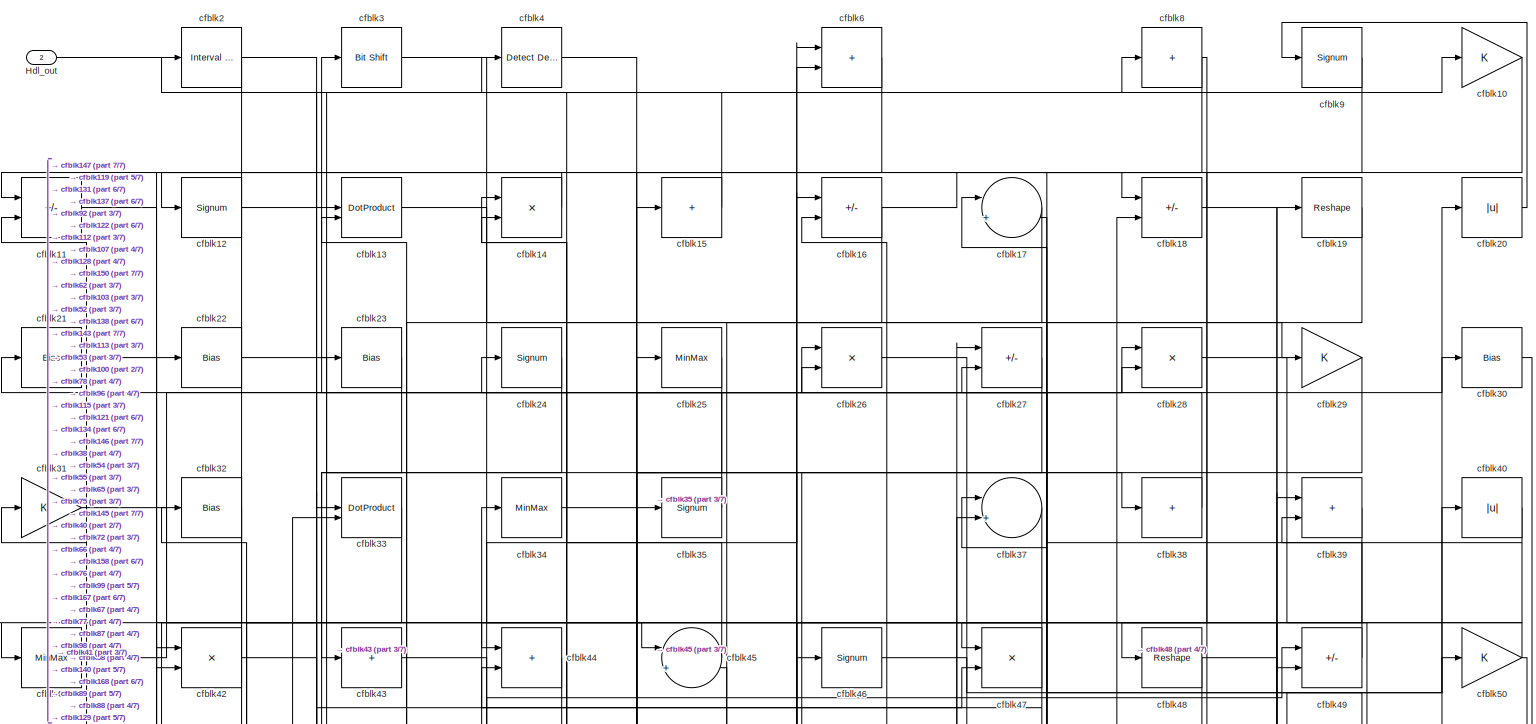
[diagram: root canvas - part 1/7, full width, top band]
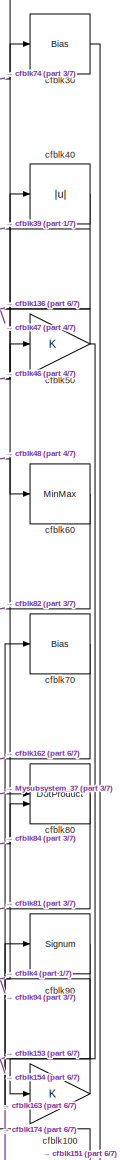
[diagram: root canvas - part 2/7, middle right region]
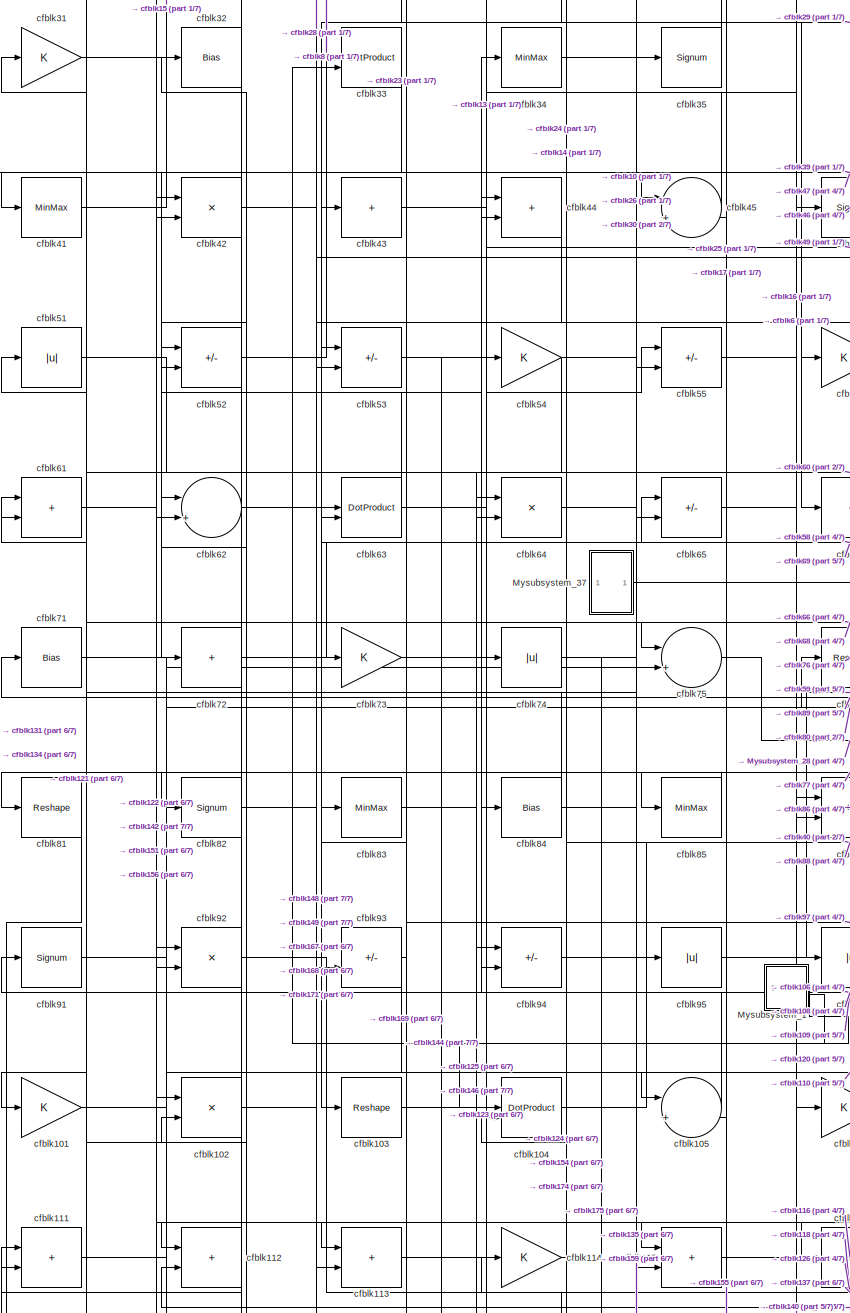
[diagram: root canvas - part 3/7, middle left region]
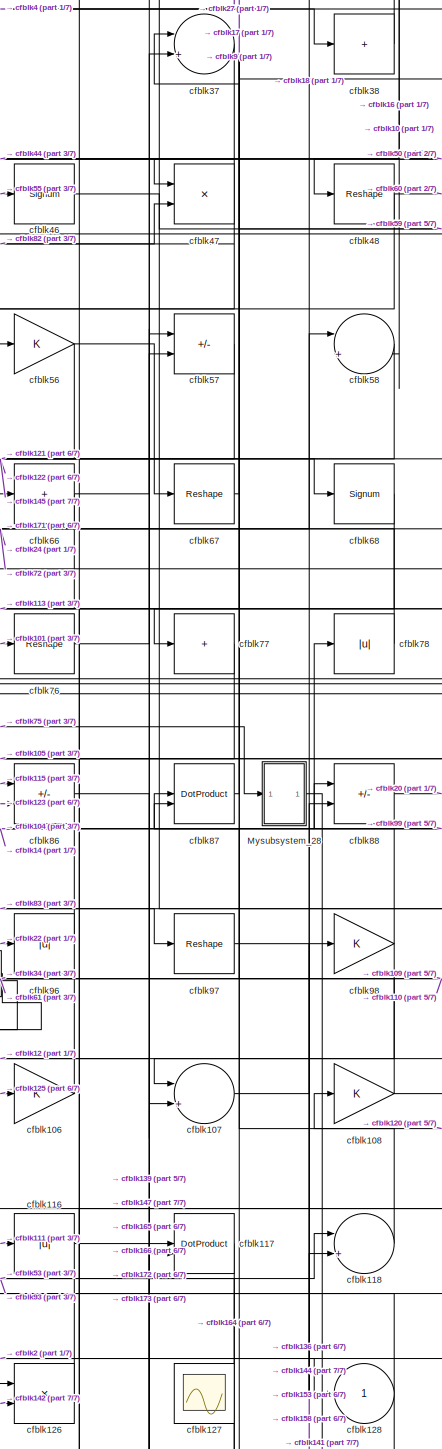
[diagram: root canvas - part 4/7, middle right region]
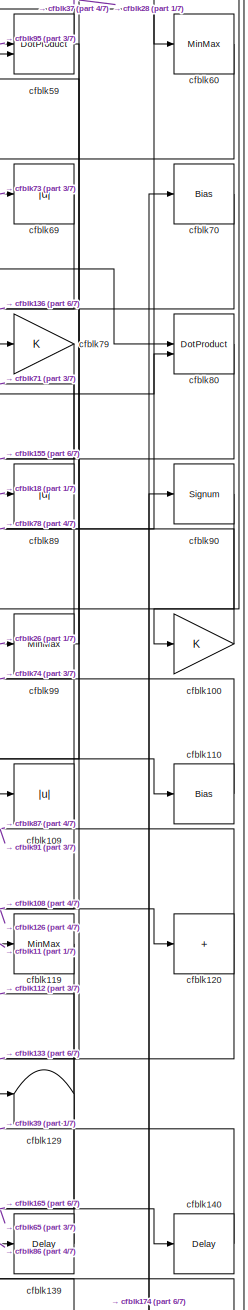
[diagram: root canvas - part 5/7, middle right region]
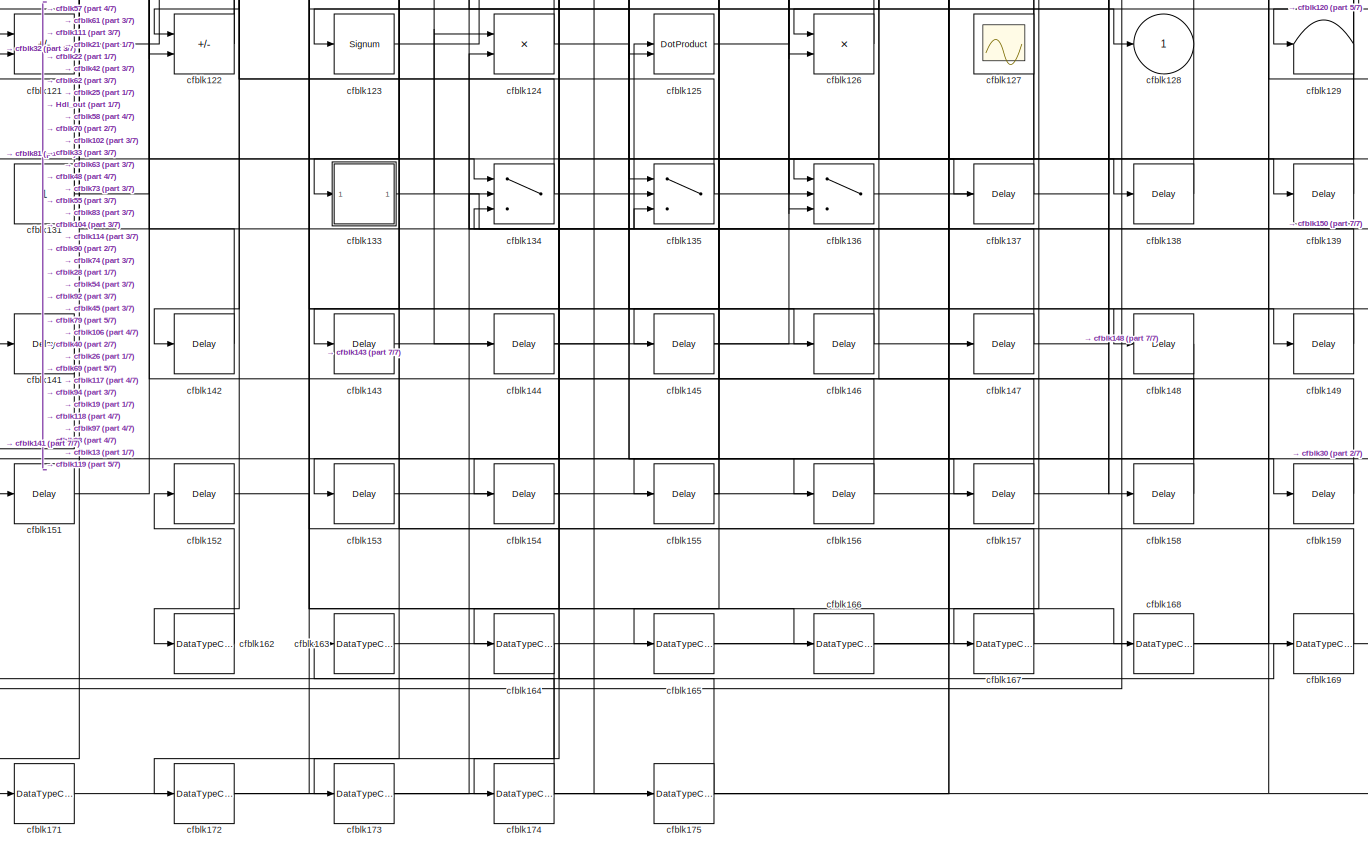
[diagram: root canvas - part 6/7, full width, bottom band]
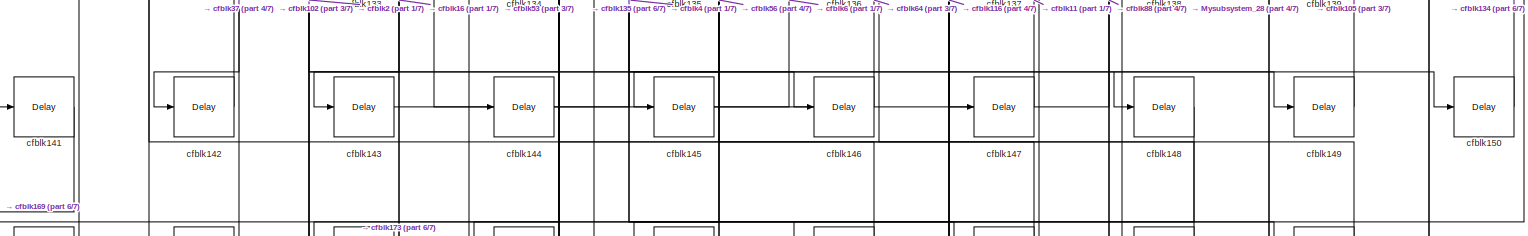
[diagram: root canvas - part 7/7, full width, bottom band]
MODEL slx_214a3b36d896
KIND model
CONFIG AbsTol = auto
CONFIG EnableMultiTasking = off
CONFIG FixedStep = auto
CONFIG MaxStep = auto
CONFIG MinStep = auto
CONFIG RelTol = 1e-3
CONFIG SampleTimeConstraint = Unconstrained
CONFIG SolverName = VariableStepAuto
CONFIG StartTime = 0.0
CONFIG StopTime = 10.0
BLOCK [Outport] Hdl_out
  OutDataTypeStr = uint8
  Port = 2
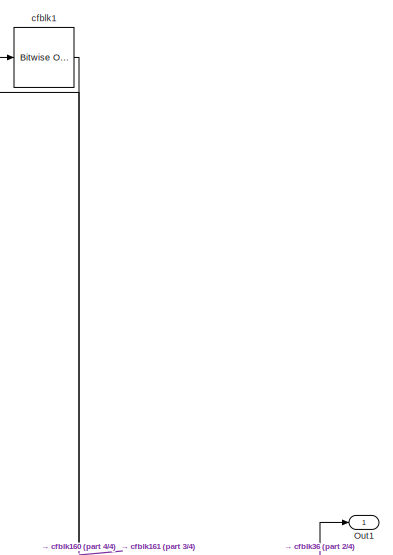
[diagram: Mysubsystem_1 - part 1/4, top left region]
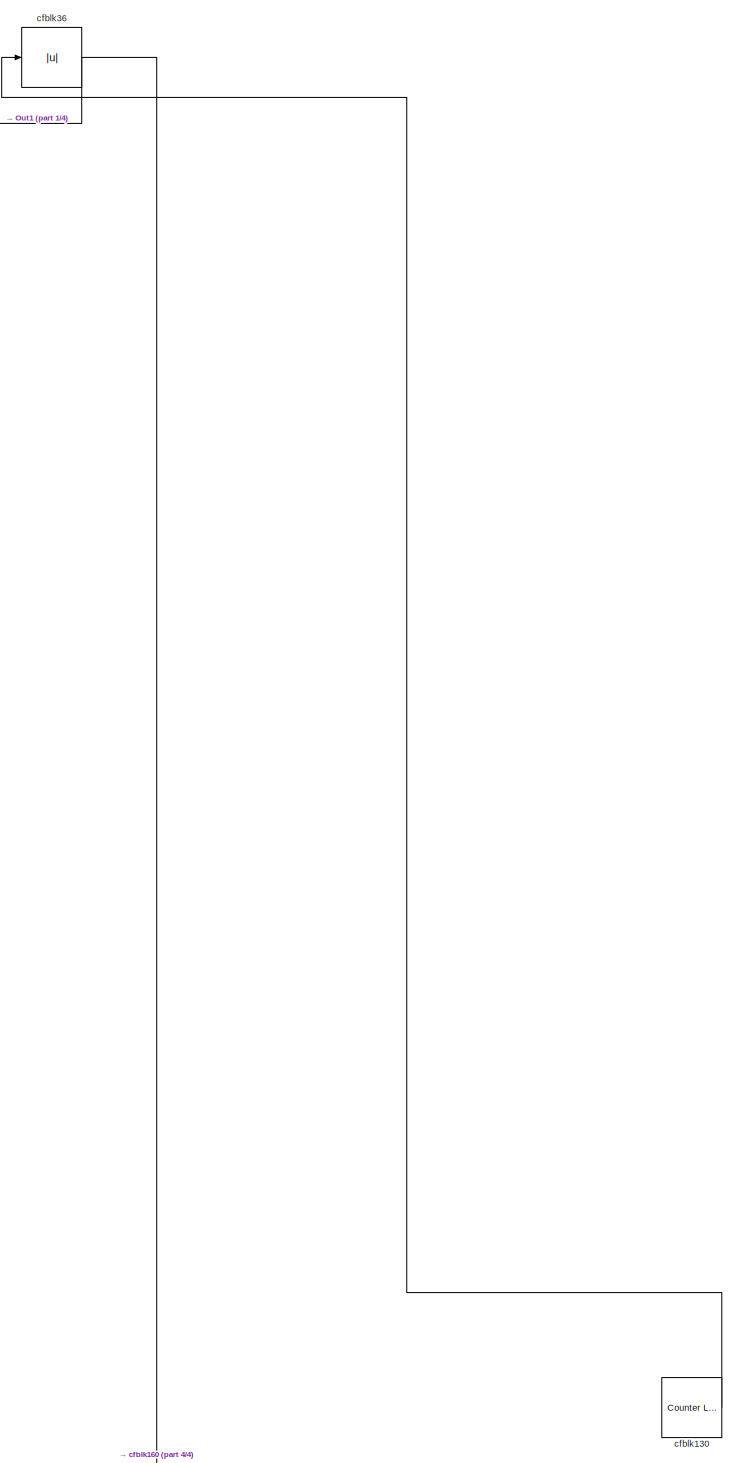
[diagram: Mysubsystem_1 - part 2/4, middle right region]
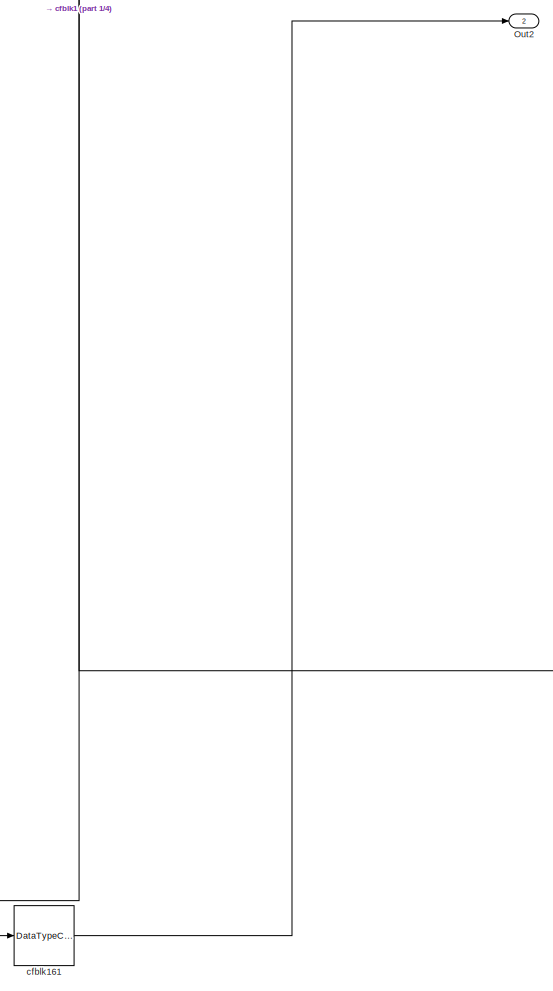
[diagram: Mysubsystem_1 - part 3/4, bottom left region]
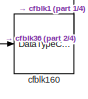
[diagram: Mysubsystem_1 - part 4/4, bottom right region]
BLOCK [SubSystem] Mysubsystem_1
  RTWFcnName = Mysubsystem_1
  RTWFcnNameOpts = User specified
  RTWFileNameOpts = Use function name
  RTWSystemCode = Reusable function
  TreatAsAtomicUnit = on
BLOCK [Outport] Mysubsystem_1/Out1
BLOCK [Outport] Mysubsystem_1/Out2
  Port = 2
BLOCK [Reference] Mysubsystem_1/cfblk1  REF=simulink/Logic and Bit
Operations/Bitwise
Operator
  LibrarySourceBlock = hdlsllib/Logic and Bit\nOperations/Bitwise\nOperator
  SourceBlock = simulink/Logic and Bit\nOperations/Bitwise\nOperator
  SourceType = Bitwise Operator
BLOCK [Reference] Mysubsystem_1/cfblk130  REF=hdlsllib/Sources/Counter
Limited
  SourceBlock = hdlsllib/Sources/Counter\nLimited
  SourceType = Counter Limited
BLOCK [DataTypeConversion] Mysubsystem_1/cfblk160
  OutDataTypeStr = boolean
  RndMeth = Floor
  SaturateOnIntegerOverflow = off
BLOCK [DataTypeConversion] Mysubsystem_1/cfblk161
  OutDataTypeStr = uint8
  RndMeth = Floor
  SaturateOnIntegerOverflow = off
BLOCK [Abs] Mysubsystem_1/cfblk36
  SaturateOnIntegerOverflow = off
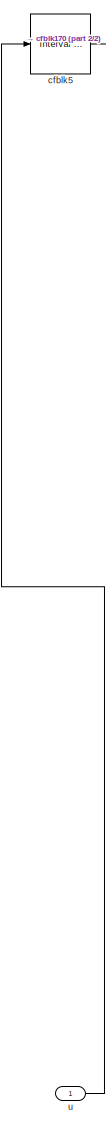
[diagram: Mysubsystem_28 - part 1/2, top center region]
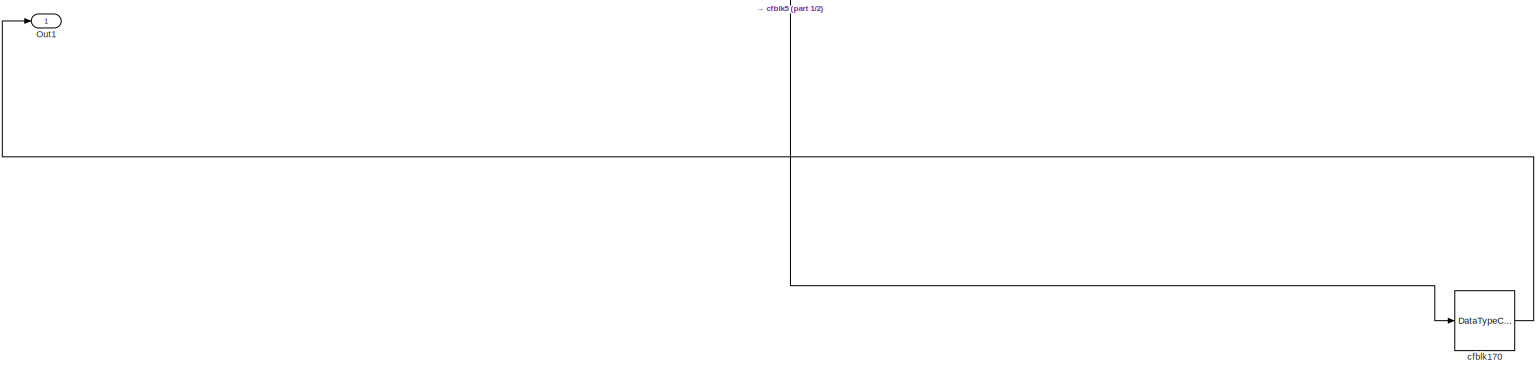
[diagram: Mysubsystem_28 - part 2/2, full width, bottom band]
BLOCK [SubSystem] Mysubsystem_28
  RTWFcnName = Mysubsystem_28
  RTWFcnNameOpts = User specified
  RTWFileNameOpts = Use function name
  RTWSystemCode = Reusable function
  TreatAsAtomicUnit = on
BLOCK [Outport] Mysubsystem_28/Out1
BLOCK [DataTypeConversion] Mysubsystem_28/cfblk170
  OutDataTypeStr = uint8
  RndMeth = Floor
  SaturateOnIntegerOverflow = off
BLOCK [Reference] Mysubsystem_28/cfblk5  REF=hdlsllib/Logic and Bit
Operations/Interval Test
  SourceBlock = hdlsllib/Logic and Bit\nOperations/Interval Test
  SourceType = Interval Test
BLOCK [Inport] Mysubsystem_28/u
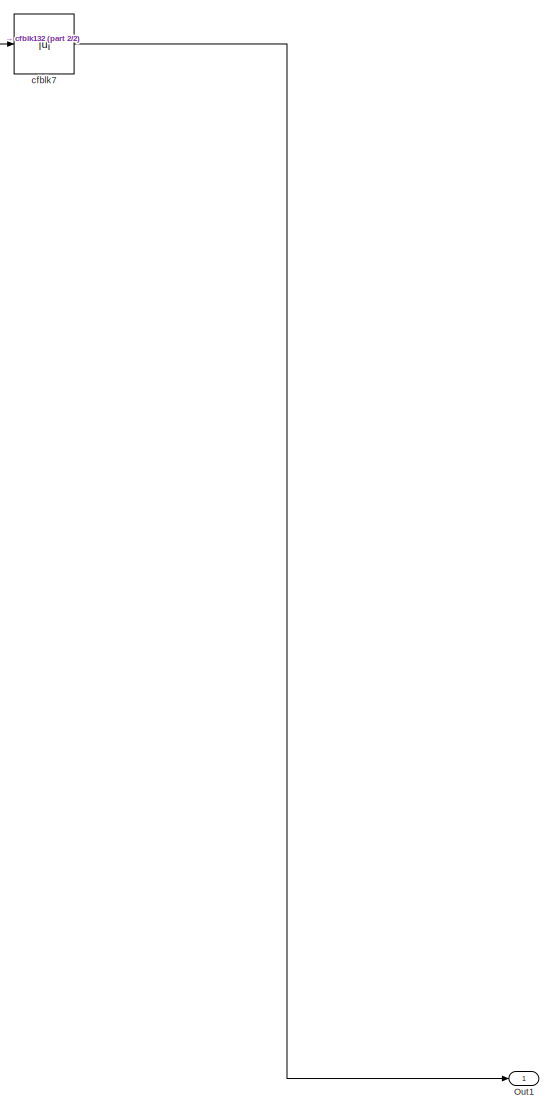
[diagram: Mysubsystem_37 - part 1/2, top right region]
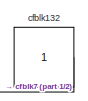
[diagram: Mysubsystem_37 - part 2/2, bottom left region]
BLOCK [SubSystem] Mysubsystem_37
  RTWFcnName = Mysubsystem_37
  RTWFcnNameOpts = User specified
  RTWFileNameOpts = Use function name
  RTWSystemCode = Reusable function
  TreatAsAtomicUnit = on
BLOCK [Outport] Mysubsystem_37/Out1
BLOCK [Constant] Mysubsystem_37/cfblk132
  SampleTime = -1
BLOCK [Abs] Mysubsystem_37/cfblk7
  SaturateOnIntegerOverflow = off
BLOCK [Gain] cfblk10
  OutDataTypeStr = uint8
BLOCK [Gain] cfblk100
  OutDataTypeStr = uint8
BLOCK [Gain] cfblk101
  OutDataTypeStr = uint8
BLOCK [Product] cfblk102
  Inputs = */
  OutDataTypeStr = uint8
  RndMeth = Zero
  SaturateOnIntegerOverflow = on
BLOCK [Reshape] cfblk103
BLOCK [DotProduct] cfblk104
  OutDataTypeStr = uint8
BLOCK [Sum] cfblk105
  Inputs = |++
  OutDataTypeStr = uint8
BLOCK [Gain] cfblk106
  OutDataTypeStr = uint8
BLOCK [Sum] cfblk107
  Inputs = |++
  OutDataTypeStr = uint8
BLOCK [Gain] cfblk108
  OutDataTypeStr = uint8
BLOCK [Abs] cfblk109
  OutDataTypeStr = uint8
  SaturateOnIntegerOverflow = off
BLOCK [Sum] cfblk11
  IconShape = rectangular
  Inputs = +-
  OutDataTypeStr = uint8
BLOCK [Bias] cfblk110
  Bias = 0.0
  SaturateOnIntegerOverflow = off
BLOCK [Sum] cfblk111
  IconShape = rectangular
  OutDataTypeStr = uint8
BLOCK [Sum] cfblk112
  IconShape = rectangular
  OutDataTypeStr = uint8
BLOCK [Sum] cfblk113
  IconShape = rectangular
  OutDataTypeStr = uint8
BLOCK [Gain] cfblk114
  OutDataTypeStr = uint8
BLOCK [Sum] cfblk115
  IconShape = rectangular
  OutDataTypeStr = uint8
BLOCK [Abs] cfblk116
  OutDataTypeStr = uint8
  SaturateOnIntegerOverflow = off
BLOCK [DotProduct] cfblk117
  OutDataTypeStr = uint8
BLOCK [Sum] cfblk118
  Inputs = |++
  OutDataTypeStr = uint8
BLOCK [MinMax] cfblk119
  OutDataTypeStr = uint8
BLOCK [Signum] cfblk12
BLOCK [Sum] cfblk120
  IconShape = rectangular
  Inputs = +
  OutDataTypeStr = uint8
BLOCK [Sum] cfblk121
  IconShape = rectangular
  Inputs = +-
  OutDataTypeStr = uint8
BLOCK [Sum] cfblk122
  IconShape = rectangular
  Inputs = +-
  OutDataTypeStr = uint8
BLOCK [Signum] cfblk123
BLOCK [Product] cfblk124
  Inputs = */
  OutDataTypeStr = uint8
  RndMeth = Zero
  SaturateOnIntegerOverflow = on
BLOCK [DotProduct] cfblk125
  OutDataTypeStr = uint8
BLOCK [Product] cfblk126
  Inputs = */
  OutDataTypeStr = uint8
  RndMeth = Zero
  SaturateOnIntegerOverflow = on
BLOCK [Scope] cfblk127
  Floating = on
  NumInputPorts = 1
  ScopeSpecificationString = Simulink.scopes.TimeScopeBlockCfg('CurrentConfiguration', extmgr.ConfigurationSet(extmgr.Configuration('Core','General UI',true,'FigureColor',[0.156862745098039 0.156862745098039 0.156862745098039]),extmgr.Configuration('Core','Source UI',true),extmgr.Configuration('Sources','WiredSimulink',true,'DataLoggingVariableName','ScopeData1','DataLoggingSaveFormat','StructureWithTime','DataLoggingLimitDat...<+2713ch>
BLOCK [Outport] cfblk128
  OutDataTypeStr = uint8
  VectorParamsAs1DForOutWhenUnconnected = off
BLOCK [Terminator] cfblk129
BLOCK [DotProduct] cfblk13
  OutDataTypeStr = uint8
BLOCK [Constant] cfblk131
  OutDataTypeStr = uint8
  SampleTime = -1
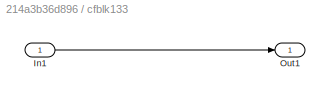
BLOCK [SubSystem] cfblk133
  LibrarySourceBlock = hdlsllib/Ports &\nSubsystems/Subsystem
BLOCK [Inport] cfblk133/In1
BLOCK [Outport] cfblk133/Out1
BLOCK [Switch] cfblk134
  InputSameDT = off
  OutDataTypeStr = uint8
  SaturateOnIntegerOverflow = off
BLOCK [Switch] cfblk135
  InputSameDT = off
  OutDataTypeStr = uint8
  SaturateOnIntegerOverflow = off
BLOCK [Switch] cfblk136
  InputSameDT = off
  OutDataTypeStr = uint8
  SaturateOnIntegerOverflow = off
BLOCK [Delay] cfblk137
  InputPortMap = u0
  SampleTime = 1
BLOCK [Delay] cfblk138
  InputPortMap = u0
  SampleTime = 1
BLOCK [Delay] cfblk139
  InputPortMap = u0
  SampleTime = 1
BLOCK [Product] cfblk14
  Inputs = */
  OutDataTypeStr = uint8
  RndMeth = Zero
  SaturateOnIntegerOverflow = on
BLOCK [Delay] cfblk140
  InputPortMap = u0
  SampleTime = 1
BLOCK [Delay] cfblk141
  InputPortMap = u0
  SampleTime = 1
BLOCK [Delay] cfblk142
  InputPortMap = u0
  SampleTime = 1
BLOCK [Delay] cfblk143
  InputPortMap = u0
  SampleTime = 1
BLOCK [Delay] cfblk144
  InputPortMap = u0
  SampleTime = 1
BLOCK [Delay] cfblk145
  InputPortMap = u0
  SampleTime = 1
BLOCK [Delay] cfblk146
  InputPortMap = u0
  SampleTime = 1
BLOCK [Delay] cfblk147
  InputPortMap = u0
  SampleTime = 1
BLOCK [Delay] cfblk148
  InputPortMap = u0
  SampleTime = 1
BLOCK [Delay] cfblk149
  InputPortMap = u0
  SampleTime = 1
BLOCK [Sum] cfblk15
  IconShape = rectangular
  Inputs = +
  OutDataTypeStr = uint8
BLOCK [Delay] cfblk150
  InputPortMap = u0
  SampleTime = 1
BLOCK [Delay] cfblk151
  InputPortMap = u0
  SampleTime = 1
BLOCK [Delay] cfblk152
  InputPortMap = u0
  SampleTime = 1
BLOCK [Delay] cfblk153
  InputPortMap = u0
  SampleTime = 1
BLOCK [Delay] cfblk154
  InputPortMap = u0
  SampleTime = 1
BLOCK [Delay] cfblk155
  InputPortMap = u0
  SampleTime = 1
BLOCK [Delay] cfblk156
  InputPortMap = u0
  SampleTime = 1
BLOCK [Delay] cfblk157
  InputPortMap = u0
  SampleTime = 1
BLOCK [Delay] cfblk158
  InputPortMap = u0
  SampleTime = 1
BLOCK [Delay] cfblk159
  InputPortMap = u0
  SampleTime = 1
BLOCK [Sum] cfblk16
  IconShape = rectangular
  Inputs = +-
  OutDataTypeStr = uint8
BLOCK [DataTypeConversion] cfblk162
  OutDataTypeStr = uint8
  RndMeth = Floor
  SaturateOnIntegerOverflow = off
BLOCK [DataTypeConversion] cfblk163
  OutDataTypeStr = uint8
  RndMeth = Floor
  SaturateOnIntegerOverflow = off
BLOCK [DataTypeConversion] cfblk164
  OutDataTypeStr = uint8
  RndMeth = Floor
  SaturateOnIntegerOverflow = off
BLOCK [DataTypeConversion] cfblk165
  OutDataTypeStr = uint8
  RndMeth = Floor
  SaturateOnIntegerOverflow = off
BLOCK [DataTypeConversion] cfblk166
  OutDataTypeStr = uint8
  RndMeth = Floor
  SaturateOnIntegerOverflow = off
BLOCK [DataTypeConversion] cfblk167
  OutDataTypeStr = uint8
  RndMeth = Floor
  SaturateOnIntegerOverflow = off
BLOCK [DataTypeConversion] cfblk168
  OutDataTypeStr = uint8
  RndMeth = Floor
  SaturateOnIntegerOverflow = off
BLOCK [DataTypeConversion] cfblk169
  OutDataTypeStr = uint8
  RndMeth = Floor
  SaturateOnIntegerOverflow = off
BLOCK [Sum] cfblk17
  Inputs = |++
  OutDataTypeStr = uint8
BLOCK [DataTypeConversion] cfblk171
  OutDataTypeStr = uint8
  RndMeth = Floor
  SaturateOnIntegerOverflow = off
BLOCK [DataTypeConversion] cfblk172
  OutDataTypeStr = uint8
  RndMeth = Floor
  SaturateOnIntegerOverflow = off
BLOCK [DataTypeConversion] cfblk173
  OutDataTypeStr = uint8
  RndMeth = Floor
  SaturateOnIntegerOverflow = off
BLOCK [DataTypeConversion] cfblk174
  OutDataTypeStr = uint8
  RndMeth = Floor
  SaturateOnIntegerOverflow = off
BLOCK [DataTypeConversion] cfblk175
  OutDataTypeStr = uint8
  RndMeth = Floor
  SaturateOnIntegerOverflow = off
BLOCK [Sum] cfblk18
  IconShape = rectangular
  Inputs = +-
  OutDataTypeStr = uint8
BLOCK [Reshape] cfblk19
BLOCK [Reference] cfblk2  REF=hdlsllib/Logic and Bit
Operations/Interval Test
  SourceBlock = hdlsllib/Logic and Bit\nOperations/Interval Test
  SourceType = Interval Test
BLOCK [Abs] cfblk20
  OutDataTypeStr = uint8
  SaturateOnIntegerOverflow = off
BLOCK [Bias] cfblk21
  Bias = 0.0
  SaturateOnIntegerOverflow = off
BLOCK [Bias] cfblk22
  Bias = 0.0
  SaturateOnIntegerOverflow = off
BLOCK [Bias] cfblk23
  Bias = 0.0
  SaturateOnIntegerOverflow = off
BLOCK [Signum] cfblk24
BLOCK [MinMax] cfblk25
  OutDataTypeStr = uint8
BLOCK [Product] cfblk26
  Inputs = */
  OutDataTypeStr = uint8
  RndMeth = Zero
  SaturateOnIntegerOverflow = on
BLOCK [Sum] cfblk27
  IconShape = rectangular
  Inputs = +-
  OutDataTypeStr = uint8
BLOCK [Product] cfblk28
  Inputs = */
  OutDataTypeStr = uint8
  RndMeth = Zero
  SaturateOnIntegerOverflow = on
BLOCK [Gain] cfblk29
  OutDataTypeStr = uint8
BLOCK [Reference] cfblk3  REF=hdlsllib/Logic and Bit
Operations/Bit Shift
  SourceBlock = hdlsllib/Logic and Bit\nOperations/Bit Shift
  SourceType = Bit Shift
BLOCK [Bias] cfblk30
  Bias = 0.0
  SaturateOnIntegerOverflow = off
BLOCK [Gain] cfblk31
  OutDataTypeStr = uint8
BLOCK [Bias] cfblk32
  Bias = 0.0
  SaturateOnIntegerOverflow = off
BLOCK [DotProduct] cfblk33
  OutDataTypeStr = uint8
BLOCK [MinMax] cfblk34
  OutDataTypeStr = uint8
BLOCK [Signum] cfblk35
BLOCK [Sum] cfblk37
  Inputs = |++
  OutDataTypeStr = uint8
BLOCK [Sum] cfblk38
  IconShape = rectangular
  Inputs = +
  OutDataTypeStr = uint8
BLOCK [Sum] cfblk39
  IconShape = rectangular
  OutDataTypeStr = uint8
BLOCK [Reference] cfblk4  REF=simulink/Logic and Bit
Operations/Detect
Decrease
  LibrarySourceBlock = hdlsllib/Logic and Bit\nOperations/Detect\nDecrease
  SourceBlock = simulink/Logic and Bit\nOperations/Detect\nDecrease
  SourceType = Detect Decrease
BLOCK [Abs] cfblk40
  OutDataTypeStr = uint8
  SaturateOnIntegerOverflow = off
BLOCK [MinMax] cfblk41
  OutDataTypeStr = uint8
BLOCK [Product] cfblk42
  Inputs = */
  OutDataTypeStr = uint8
  RndMeth = Zero
  SaturateOnIntegerOverflow = on
BLOCK [Sum] cfblk43
  IconShape = rectangular
  Inputs = +
  OutDataTypeStr = uint8
BLOCK [Sum] cfblk44
  IconShape = rectangular
  OutDataTypeStr = uint8
BLOCK [Sum] cfblk45
  Inputs = |++
  OutDataTypeStr = uint8
BLOCK [Signum] cfblk46
BLOCK [Product] cfblk47
  Inputs = */
  OutDataTypeStr = uint8
  RndMeth = Zero
  SaturateOnIntegerOverflow = on
BLOCK [Reshape] cfblk48
BLOCK [Sum] cfblk49
  IconShape = rectangular
  Inputs = +-
  OutDataTypeStr = uint8
BLOCK [Gain] cfblk50
  OutDataTypeStr = uint8
BLOCK [Abs] cfblk51
  OutDataTypeStr = uint8
  SaturateOnIntegerOverflow = off
BLOCK [Sum] cfblk52
  IconShape = rectangular
  Inputs = +-
  OutDataTypeStr = uint8
BLOCK [Sum] cfblk53
  IconShape = rectangular
  Inputs = +-
  OutDataTypeStr = uint8
BLOCK [Gain] cfblk54
  OutDataTypeStr = uint8
BLOCK [Sum] cfblk55
  IconShape = rectangular
  Inputs = +-
  OutDataTypeStr = uint8
BLOCK [Gain] cfblk56
  OutDataTypeStr = uint8
BLOCK [Sum] cfblk57
  IconShape = rectangular
  Inputs = +-
  OutDataTypeStr = uint8
BLOCK [Sum] cfblk58
  Inputs = |++
  OutDataTypeStr = uint8
BLOCK [DotProduct] cfblk59
  OutDataTypeStr = uint8
BLOCK [Sum] cfblk6
  IconShape = rectangular
  OutDataTypeStr = uint8
BLOCK [MinMax] cfblk60
  OutDataTypeStr = uint8
BLOCK [Sum] cfblk61
  IconShape = rectangular
  OutDataTypeStr = uint8
BLOCK [Sum] cfblk62
  Inputs = |++
  OutDataTypeStr = uint8
BLOCK [DotProduct] cfblk63
  OutDataTypeStr = uint8
BLOCK [Product] cfblk64
  Inputs = */
  OutDataTypeStr = uint8
  RndMeth = Zero
  SaturateOnIntegerOverflow = on
BLOCK [Sum] cfblk65
  IconShape = rectangular
  Inputs = +-
  OutDataTypeStr = uint8
BLOCK [Sum] cfblk66
  IconShape = rectangular
  Inputs = +
  OutDataTypeStr = uint8
BLOCK [Reshape] cfblk67
BLOCK [Signum] cfblk68
BLOCK [Abs] cfblk69
  OutDataTypeStr = uint8
  SaturateOnIntegerOverflow = off
BLOCK [Bias] cfblk70
  Bias = 0.0
  SaturateOnIntegerOverflow = off
BLOCK [Bias] cfblk71
  Bias = 0.0
  SaturateOnIntegerOverflow = off
BLOCK [Sum] cfblk72
  IconShape = rectangular
  Inputs = +
  OutDataTypeStr = uint8
BLOCK [Gain] cfblk73
  OutDataTypeStr = uint8
BLOCK [Abs] cfblk74
  OutDataTypeStr = uint8
  SaturateOnIntegerOverflow = off
BLOCK [Sum] cfblk75
  Inputs = |++
  OutDataTypeStr = uint8
BLOCK [Reshape] cfblk76
BLOCK [Sum] cfblk77
  IconShape = rectangular
  Inputs = +
  OutDataTypeStr = uint8
BLOCK [Abs] cfblk78
  OutDataTypeStr = uint8
  SaturateOnIntegerOverflow = off
BLOCK [Gain] cfblk79
  OutDataTypeStr = uint8
BLOCK [Sum] cfblk8
  IconShape = rectangular
  Inputs = +
  OutDataTypeStr = uint8
BLOCK [DotProduct] cfblk80
  OutDataTypeStr = uint8
BLOCK [Reshape] cfblk81
BLOCK [Signum] cfblk82
BLOCK [MinMax] cfblk83
  OutDataTypeStr = uint8
BLOCK [Bias] cfblk84
  Bias = 0.0
  SaturateOnIntegerOverflow = off
BLOCK [MinMax] cfblk85
  OutDataTypeStr = uint8
BLOCK [Sum] cfblk86
  IconShape = rectangular
  Inputs = +-
  OutDataTypeStr = uint8
BLOCK [DotProduct] cfblk87
  OutDataTypeStr = uint8
BLOCK [Sum] cfblk88
  IconShape = rectangular
  Inputs = +-
  OutDataTypeStr = uint8
BLOCK [Abs] cfblk89
  OutDataTypeStr = uint8
  SaturateOnIntegerOverflow = off
BLOCK [Signum] cfblk9
BLOCK [Signum] cfblk90
BLOCK [Signum] cfblk91
BLOCK [Product] cfblk92
  Inputs = */
  OutDataTypeStr = uint8
  RndMeth = Zero
  SaturateOnIntegerOverflow = on
BLOCK [Sum] cfblk93
  IconShape = rectangular
  Inputs = +-
  OutDataTypeStr = uint8
BLOCK [Sum] cfblk94
  IconShape = rectangular
  Inputs = +-
  OutDataTypeStr = uint8
BLOCK [Abs] cfblk95
  OutDataTypeStr = uint8
  SaturateOnIntegerOverflow = off
BLOCK [Abs] cfblk96
  OutDataTypeStr = uint8
  SaturateOnIntegerOverflow = off
BLOCK [Reshape] cfblk97
BLOCK [Gain] cfblk98
  OutDataTypeStr = uint8
BLOCK [MinMax] cfblk99
  OutDataTypeStr = uint8
LINE Mysubsystem_1/cfblk130:1 -> Mysubsystem_1/cfblk36:1
LINE Mysubsystem_1/cfblk160:1 -> Mysubsystem_1/cfblk1:1
LINE Mysubsystem_1/cfblk161:1 -> Mysubsystem_1/Out2:1
LINE Mysubsystem_1/cfblk1:1 -> Mysubsystem_1/cfblk161:1
NET Mysubsystem_1/cfblk36:1 -> Mysubsystem_1/Out1:1, Mysubsystem_1/cfblk160:1
LINE Mysubsystem_1:1 -> cfblk33:2
LINE Mysubsystem_1:2 -> cfblk104:1
LINE Mysubsystem_28/cfblk170:1 -> Mysubsystem_28/Out1:1
LINE Mysubsystem_28/cfblk5:1 -> Mysubsystem_28/cfblk170:1
LINE Mysubsystem_28/u:1 -> Mysubsystem_28/cfblk5:1
LINE Mysubsystem_28:1 -> cfblk141:1
LINE Mysubsystem_37/cfblk132:1 -> Mysubsystem_37/cfblk7:1
LINE Mysubsystem_37/cfblk7:1 -> Mysubsystem_37/Out1:1
LINE Mysubsystem_37:1 -> cfblk80:1
LINE cfblk100:1 -> cfblk4:1
LINE cfblk101:1 -> cfblk76:1
NET cfblk102:1 -> cfblk148:1, cfblk149:1, cfblk168:1, cfblk54:1
LINE cfblk103:1 -> cfblk65:1
LINE cfblk104:1 -> cfblk88:1
LINE cfblk105:1 -> cfblk94:2
LINE cfblk106:1 -> cfblk34:1
LINE cfblk107:1 -> cfblk18:2
NET cfblk108:1 -> cfblk120:1, cfblk61:1
NET cfblk109:1 -> cfblk126:1, cfblk74:1
NET cfblk10:1 -> cfblk55:2, cfblk58:2
LINE cfblk110:1 -> cfblk87:2
LINE cfblk111:1 -> cfblk116:1
LINE cfblk112:1 -> cfblk51:1
LINE cfblk113:1 -> cfblk49:1
LINE cfblk114:1 -> cfblk174:1
LINE cfblk115:1 -> cfblk86:1
LINE cfblk116:1 -> cfblk147:1
LINE cfblk117:1 -> cfblk164:1
LINE cfblk118:1 -> cfblk108:1
LINE cfblk119:1 -> cfblk165:1
NET cfblk11:1 -> cfblk119:1, cfblk49:2
NET cfblk120:1 -> cfblk133:1, cfblk87:1, cfblk91:1
NET cfblk121:1 -> cfblk25:1, cfblk61:2
NET cfblk122:1 -> Hdl_out:1, cfblk111:1
LINE cfblk123:1 -> cfblk55:1
NET cfblk124:1 -> cfblk136:3, cfblk156:1, cfblk157:1, cfblk83:1
LINE cfblk125:1 -> cfblk106:1
LINE cfblk126:1 -> cfblk53:1
NET cfblk12:1 -> cfblk107:2, cfblk10:1, cfblk3:1
NET cfblk131:1 -> cfblk111:2, cfblk22:1, cfblk62:2
LINE cfblk133/In1:1 -> cfblk133/Out1:1
NET cfblk133:1 -> cfblk124:1, cfblk125:1
NET cfblk134:1 -> cfblk28:2, cfblk32:1
NET cfblk135:1 -> cfblk102:2, cfblk138:1
LINE cfblk136:1 -> cfblk98:1
LINE cfblk137:1 -> cfblk94:1
LINE cfblk138:1 -> cfblk13:2
LINE cfblk139:1 -> cfblk112:2
LINE cfblk13:1 -> cfblk45:1
LINE cfblk140:1 -> cfblk39:1
LINE cfblk141:1 -> cfblk169:1
LINE cfblk142:1 -> cfblk102:1
LINE cfblk143:1 -> cfblk135:2
LINE cfblk144:1 -> cfblk88:2
LINE cfblk145:1 -> cfblk6:2
LINE cfblk146:1 -> cfblk64:1
LINE cfblk147:1 -> cfblk11:2
LINE cfblk148:1 -> cfblk173:1
LINE cfblk149:1 -> cfblk105:2
LINE cfblk14:1 -> cfblk11:1
LINE cfblk150:1 -> cfblk134:2
LINE cfblk151:1 -> cfblk42:1
LINE cfblk152:1 -> cfblk166:1
LINE cfblk153:1 -> cfblk118:2
LINE cfblk154:1 -> cfblk104:2
LINE cfblk155:1 -> cfblk45:2
LINE cfblk156:1 -> cfblk92:1
LINE cfblk157:1 -> cfblk134:3
LINE cfblk158:1 -> cfblk26:2
LINE cfblk159:1 -> cfblk135:3
LINE cfblk15:1 -> cfblk2:1
LINE cfblk162:1 -> cfblk152:1
LINE cfblk163:1 -> cfblk70:1
LINE cfblk164:1 -> cfblk172:1
LINE cfblk165:1 -> cfblk117:1
LINE cfblk166:1 -> cfblk117:2
LINE cfblk167:1 -> cfblk63:1
LINE cfblk168:1 -> cfblk19:1
LINE cfblk169:1 -> cfblk63:2
NET cfblk16:1 -> cfblk143:1, cfblk18:1
NET cfblk171:1 -> cfblk124:2, cfblk33:1
LINE cfblk172:1 -> cfblk57:1
LINE cfblk173:1 -> cfblk57:2
NET cfblk174:1 -> cfblk163:1, cfblk79:1, cfblk90:1
LINE cfblk175:1 -> cfblk114:1
LINE cfblk17:1 -> cfblk75:1
LINE cfblk18:1 -> cfblk89:1
LINE cfblk19:1 -> cfblk167:1
LINE cfblk20:1 -> cfblk9:1
LINE cfblk21:1 -> cfblk137:1
NET cfblk22:1 -> cfblk23:1, cfblk96:1
LINE cfblk23:1 -> cfblk103:1
LINE cfblk24:1 -> cfblk43:1
LINE cfblk25:1 -> cfblk115:2
LINE cfblk26:1 -> cfblk99:1
LINE cfblk27:1 -> cfblk66:1
LINE cfblk28:1 -> cfblk129:1
LINE cfblk29:1 -> cfblk65:2
NET cfblk2:1 -> cfblk128:1, cfblk150:1
LINE cfblk30:1 -> cfblk151:1
LINE cfblk31:1 -> cfblk53:2
NET cfblk32:1 -> cfblk121:2, cfblk41:1, cfblk42:2
LINE cfblk33:1 -> cfblk72:1
LINE cfblk34:1 -> cfblk95:1
LINE cfblk35:1 -> cfblk13:1
NET cfblk37:1 -> cfblk126:2, cfblk142:1
LINE cfblk38:1 -> cfblk16:2
NET cfblk39:1 -> cfblk112:1, cfblk52:1
LINE cfblk3:1 -> cfblk29:1
NET cfblk40:1 -> cfblk136:2, cfblk39:2
LINE cfblk41:1 -> cfblk15:1
LINE cfblk42:1 -> cfblk93:1
LINE cfblk43:1 -> cfblk85:1
LINE cfblk44:1 -> cfblk113:2
LINE cfblk45:1 -> cfblk14:1
LINE cfblk46:1 -> cfblk50:1
NET cfblk47:1 -> cfblk44:1, cfblk44:2, cfblk56:1
NET cfblk48:1 -> cfblk123:1, cfblk60:1, cfblk86:2
LINE cfblk49:1 -> cfblk21:1
NET cfblk4:1 -> cfblk146:1, cfblk38:1
NET cfblk50:1 -> cfblk100:1, cfblk47:1
LINE cfblk51:1 -> cfblk64:2
LINE cfblk52:1 -> cfblk8:1
NET cfblk53:1 -> cfblk144:1, cfblk16:1
NET cfblk54:1 -> cfblk159:1, cfblk26:1, cfblk93:2
LINE cfblk55:1 -> cfblk46:1
NET cfblk56:1 -> cfblk145:1, cfblk67:1
LINE cfblk57:1 -> cfblk171:1
NET cfblk58:1 -> cfblk121:1, cfblk122:1
NET cfblk59:1 -> cfblk109:1, cfblk37:1
LINE cfblk60:1 -> cfblk82:1
LINE cfblk61:1 -> cfblk68:1
NET cfblk62:1 -> cfblk122:2, cfblk28:1
NET cfblk63:1 -> cfblk115:1, cfblk52:2
LINE cfblk64:1 -> cfblk35:1
LINE cfblk65:1 -> cfblk140:1
NET cfblk66:1 -> cfblk113:1, cfblk37:2
LINE cfblk67:1 -> cfblk27:2
LINE cfblk68:1 -> cfblk101:1
LINE cfblk69:1 -> cfblk136:1
LINE cfblk6:1 -> cfblk92:2
LINE cfblk70:1 -> cfblk162:1
LINE cfblk71:1 -> cfblk110:1
NET cfblk72:1 -> cfblk58:1, cfblk6:1
NET cfblk73:1 -> cfblk125:2, cfblk69:1
NET cfblk74:1 -> cfblk175:1, cfblk30:1
LINE cfblk75:1 -> Mysubsystem_28:1
LINE cfblk76:1 -> cfblk27:1
LINE cfblk77:1 -> cfblk105:1
LINE cfblk78:1 -> cfblk24:1
LINE cfblk79:1 -> cfblk155:1
LINE cfblk80:1 -> cfblk81:1
LINE cfblk81:1 -> cfblk134:1
NET cfblk82:1 -> cfblk31:1, cfblk47:2
LINE cfblk83:1 -> cfblk97:1
NET cfblk84:1 -> cfblk62:1, cfblk80:2
LINE cfblk85:1 -> cfblk84:1
LINE cfblk86:1 -> cfblk139:1
LINE cfblk87:1 -> cfblk17:1
LINE cfblk88:1 -> cfblk20:1
LINE cfblk89:1 -> cfblk71:1
NET cfblk8:1 -> cfblk12:1, cfblk48:1
NET cfblk90:1 -> cfblk153:1, cfblk154:1
LINE cfblk91:1 -> cfblk75:2
LINE cfblk92:1 -> cfblk135:1
NET cfblk93:1 -> cfblk118:1, cfblk73:1
LINE cfblk94:1 -> cfblk40:1
LINE cfblk95:1 -> cfblk59:1
LINE cfblk96:1 -> cfblk14:2
LINE cfblk97:1 -> cfblk158:1
NET cfblk98:1 -> cfblk107:1, cfblk17:2
NET cfblk99:1 -> cfblk59:2, cfblk78:1
LINE cfblk9:1 -> cfblk77:1
note: NET lines group one-source signal fan-out (src -> all destinations, sorted); 1:1 wires keep LINE
